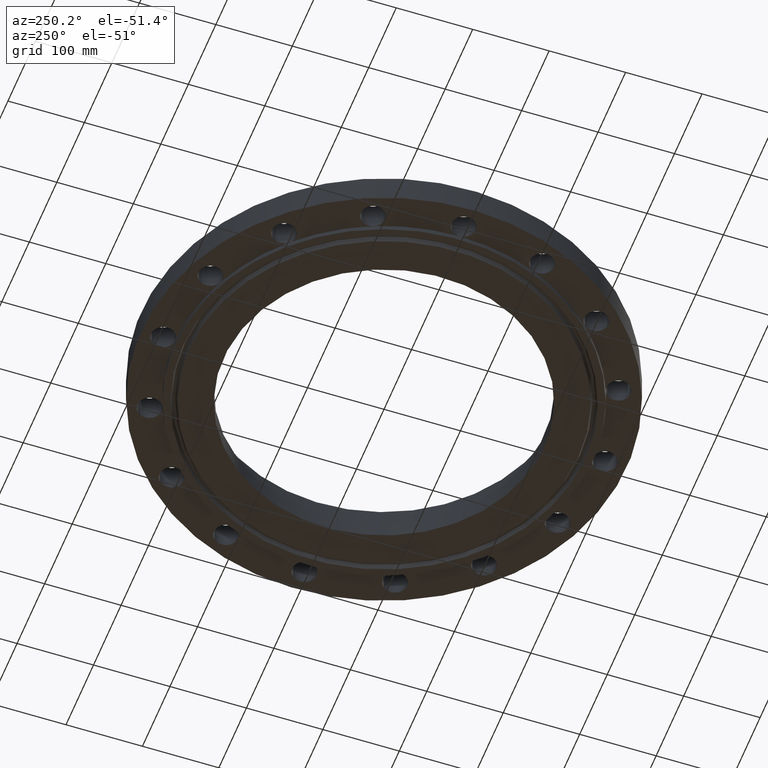
[diagram: clean part render]
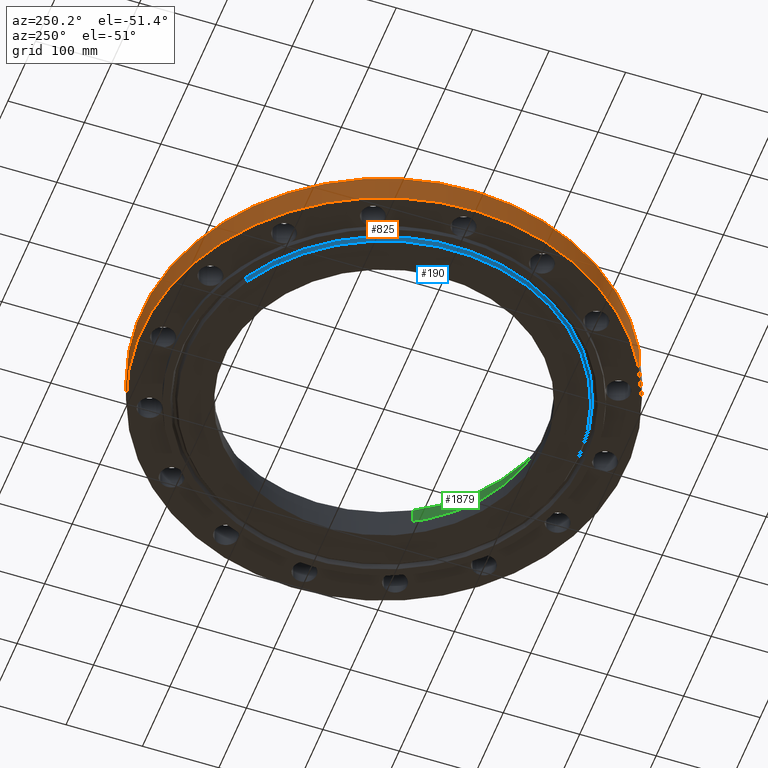
[diagram: same view with three faces highlighted in distinct colors, each labeled with its STEP entity id]
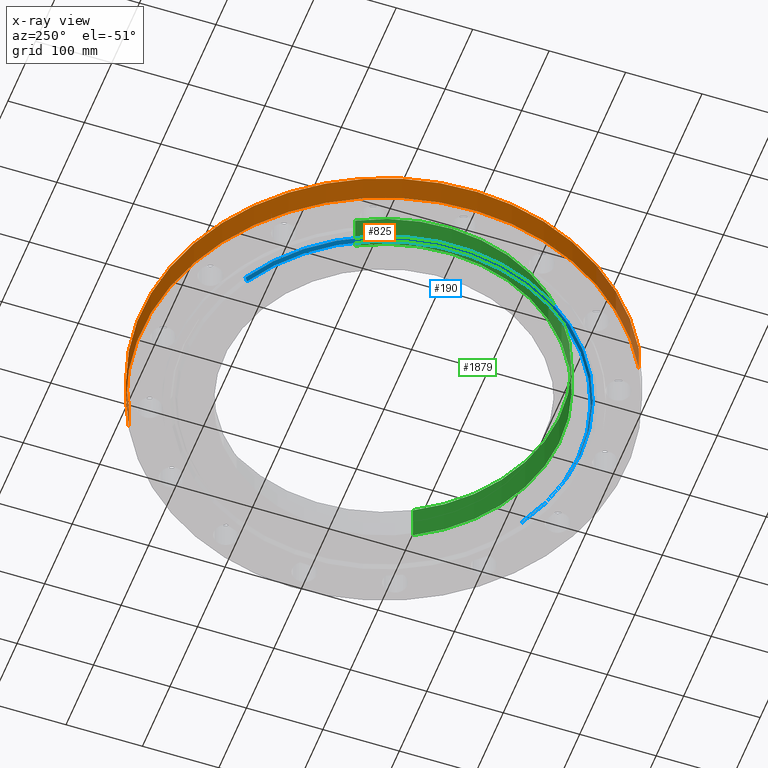
[diagram: x-ray of the same camera — body ghosted, the three highlighted faces saturated]
A machine part, auxiliary view with three faces highlighted in distinct colors.
The next image is the same camera in x-ray (body ghosted, the three faces saturated) — at least one of them is partly hidden behind the body in this view.
Their STEP definitions:

[orange] entity #825 — the highlighted cylindrical surface (partial cylindrical patch) has radius 317.5 mm, axis along (0, 0, -1).
#406=AXIS2_PLACEMENT_3D('Circle Axis2P3D',#404,#405,$) ;
#798=AXIS2_PLACEMENT_3D('Cylinder Axis2P3D',#795,#796,#797) ;
#809=AXIS2_PLACEMENT_3D('Circle Axis2P3D',#807,#808,$) ;
#404=CARTESIAN_POINT('Axis2P3D Location',(0.,0.,0.)) ;
#408=CARTESIAN_POINT('Vertex',(-5.99281923258,-10.9697820237,1.39870617276E-015)) ;
#410=CARTESIAN_POINT('Vertex',(5.99281923258,10.9697820237,1.39870617276E-015)) ;
#795=CARTESIAN_POINT('Axis2P3D Location',(0.,0.,1.185)) ;
#800=CARTESIAN_POINT('Line Origine',(-5.99281923258,-10.9697820237,0.750000000003)) ;
#804=CARTESIAN_POINT('Vertex',(-5.99281923258,-10.9697820237,1.50000000001)) ;
#807=CARTESIAN_POINT('Axis2P3D Location',(0.,0.,1.50000000001)) ;
#811=CARTESIAN_POINT('Vertex',(5.99281923258,10.9697820237,1.50000000001)) ;
#814=CARTESIAN_POINT('Line Origine',(5.99281923258,10.9697820237,0.750000000003)) ;
#405=DIRECTION('Axis2P3D Direction',(0.,0.,-0.0393700787402)) ;
#796=DIRECTION('Axis2P3D Direction',(0.,0.,-0.0393700787402)) ;
#797=DIRECTION('Axis2P3D XDirection',(0.0188750212049,0.0345504945626,0.)) ;
#801=DIRECTION('Vector Direction',(0.,0.,-0.0393700787402)) ;
#808=DIRECTION('Axis2P3D Direction',(0.,0.,-0.0393700787402)) ;
#815=DIRECTION('Vector Direction',(0.,0.,-0.0393700787402)) ;
#802=VECTOR('Line Direction',#801,0.0393700787402) ;
#816=VECTOR('Line Direction',#815,0.0393700787402) ;
#820=ORIENTED_EDGE('',*,*,#412,.F.) ;
#821=ORIENTED_EDGE('',*,*,#806,.T.) ;
#822=ORIENTED_EDGE('',*,*,#813,.T.) ;
#823=ORIENTED_EDGE('',*,*,#818,.F.) ;
#825=ADVANCED_FACE('PartBody',(#824),#799,.T.) ;
#407=CIRCLE('generated circle',#406,12.5000000001) ;
#810=CIRCLE('generated circle',#809,12.5000000001) ;
#799=CYLINDRICAL_SURFACE('generated cylinder',#798,12.5000000001) ;
#412=EDGE_CURVE('',#409,#411,#407,.T.) ;
#806=EDGE_CURVE('',#409,#805,#803,.F.) ;
#813=EDGE_CURVE('',#805,#812,#810,.T.) ;
#818=EDGE_CURVE('',#411,#812,#817,.F.) ;
#819=EDGE_LOOP('',(#820,#821,#822,#823)) ;
#824=FACE_OUTER_BOUND('',#819,.T.) ;
#803=LINE('Line',#800,#802) ;
#817=LINE('Line',#814,#816) ;
#409=VERTEX_POINT('',#408) ;
#411=VERTEX_POINT('',#410) ;
#805=VERTEX_POINT('',#804) ;
#812=VERTEX_POINT('',#811) ;

[blue] entity #190 — the highlighted conical surface has half-angle 23 deg.
#136=AXIS2_PLACEMENT_3D('Circle Axis2P3D',#134,#135,$) ;
#151=AXIS2_PLACEMENT_3D('Cone Axis2P3D',#148,#149,#150) ;
#181=AXIS2_PLACEMENT_3D('Circle Axis2P3D',#179,#180,$) ;
#129=CARTESIAN_POINT('Vertex',(-4.8017464101,8.78953784647,-0.250000000001)) ;
#131=CARTESIAN_POINT('Vertex',(4.8017464101,-8.78953784647,-0.250000000001)) ;
#134=CARTESIAN_POINT('Axis2P3D Location',(-1.1189649382E-015,0.,-0.250000000001)) ;
#148=CARTESIAN_POINT('Axis2P3D Location',(0.,0.,-0.310000000001)) ;
#153=CARTESIAN_POINT('Line Origine',(-4.82524709519,8.83255556197,-0.134519826118)) ;
#157=CARTESIAN_POINT('Vertex',(-4.84874778028,8.87557327748,-0.0190396522348)) ;
#164=CARTESIAN_POINT('Vertex',(4.84874778028,-8.87557327748,-0.0190396522348)) ;
#167=CARTESIAN_POINT('Line Origine',(4.82524709519,-8.83255556197,-0.134519826118)) ;
#179=CARTESIAN_POINT('Axis2P3D Location',(0.,0.,-0.0190396522348)) ;
#135=DIRECTION('Axis2P3D Direction',(0.,0.,-0.0393700787402)) ;
#149=DIRECTION('Axis2P3D Direction',(0.,0.,0.0393700787402)) ;
#150=DIRECTION('Axis2P3D XDirection',(-0.0188750212049,0.0345504945626,0.)) ;
#154=DIRECTION('Vector Direction',(-0.00737505833565,0.0134999537303,0.0362403485611)) ;
#168=DIRECTION('Vector Direction',(0.00737505833565,-0.0134999537303,0.0362403485611)) ;
#180=DIRECTION('Axis2P3D Direction',(0.,0.,0.0393700787402)) ;
#155=VECTOR('Line Direction',#154,0.0393700787402) ;
#169=VECTOR('Line Direction',#168,0.0393700787402) ;
#185=ORIENTED_EDGE('',*,*,#171,.F.) ;
#186=ORIENTED_EDGE('',*,*,#183,.F.) ;
#187=ORIENTED_EDGE('',*,*,#159,.T.) ;
#188=ORIENTED_EDGE('',*,*,#138,.F.) ;
#190=ADVANCED_FACE('PartBody',(#189),#152,.T.) ;
#137=CIRCLE('generated circle',#136,10.015625) ;
#182=CIRCLE('generated circle',#181,10.1136618512) ;
#152=CONICAL_SURFACE('Cone',#151,9.99015651107,0.401425727959) ;
#138=EDGE_CURVE('',#132,#130,#137,.T.) ;
#159=EDGE_CURVE('',#158,#130,#156,.F.) ;
#171=EDGE_CURVE('',#165,#132,#170,.F.) ;
#183=EDGE_CURVE('',#158,#165,#182,.T.) ;
#184=EDGE_LOOP('',(#185,#186,#187,#188)) ;
#189=FACE_OUTER_BOUND('',#184,.T.) ;
#156=LINE('Line',#153,#155) ;
#170=LINE('Line',#167,#169) ;
#130=VERTEX_POINT('',#129) ;
#132=VERTEX_POINT('',#131) ;
#158=VERTEX_POINT('',#157) ;
#165=VERTEX_POINT('',#164) ;

[green] entity #1879 — the highlighted cylindrical surface (partial cylindrical patch) has radius 230.886 mm, axis along (0, 0, -1).
#51=AXIS2_PLACEMENT_3D('Circle Axis2P3D',#49,#50,$) ;
#1814=AXIS2_PLACEMENT_3D('Circle Axis2P3D',#1812,#1813,$) ;
#1854=AXIS2_PLACEMENT_3D('Cylinder Axis2P3D',#1851,#1852,#1853) ;
#44=CARTESIAN_POINT('Vertex',(-7.97722548762,4.35797814593,0.680000000003)) ;
#46=CARTESIAN_POINT('Vertex',(7.97722548762,-4.35797814593,0.680000000003)) ;
#49=CARTESIAN_POINT('Axis2P3D Location',(1.04902962957E-016,-1.18890024684E-015,0.680000000003)) ;
#1807=CARTESIAN_POINT('Vertex',(-7.97722548762,4.35797814593,2.62000000001)) ;
#1809=CARTESIAN_POINT('Vertex',(7.97722548762,-4.35797814593,2.62000000001)) ;
#1812=CARTESIAN_POINT('Axis2P3D Location',(5.59482469102E-016,-4.47585975282E-015,2.62000000001)) ;
#1851=CARTESIAN_POINT('Axis2P3D Location',(1.04902962957E-016,-1.18890024684E-015,2.61606299214)) ;
#1856=CARTESIAN_POINT('Line Origine',(-7.97722548762,4.35797814593,1.65000000001)) ;
#1861=CARTESIAN_POINT('Line Origine',(7.97722548762,-4.35797814593,1.65000000001)) ;
#50=DIRECTION('Axis2P3D Direction',(0.,0.,-0.0393700787402)) ;
#1813=DIRECTION('Axis2P3D Direction',(0.,0.,-0.0393700787402)) ;
#1852=DIRECTION('Axis2P3D Direction',(0.,0.,-0.0393700787402)) ;
#1853=DIRECTION('Axis2P3D XDirection',(0.0345504945626,-0.0188750212049,0.)) ;
#1857=DIRECTION('Vector Direction',(0.,0.,-0.0393700787402)) ;
#1862=DIRECTION('Vector Direction',(0.,0.,-0.0393700787402)) ;
#1858=VECTOR('Line Direction',#1857,0.0393700787402) ;
#1863=VECTOR('Line Direction',#1862,0.0393700787402) ;
#1874=ORIENTED_EDGE('',*,*,#1816,.F.) ;
#1875=ORIENTED_EDGE('',*,*,#1865,.F.) ;
#1876=ORIENTED_EDGE('',*,*,#53,.T.) ;
#1877=ORIENTED_EDGE('',*,*,#1860,.T.) ;
#1879=ADVANCED_FACE('PartBody',(#1878),#1855,.F.) ;
#52=CIRCLE('generated circle',#51,9.09000000004) ;
#1815=CIRCLE('generated circle',#1814,9.09000000004) ;
#1855=CYLINDRICAL_SURFACE('generated cylinder',#1854,9.09000000004) ;
#53=EDGE_CURVE('',#47,#45,#52,.T.) ;
#1816=EDGE_CURVE('',#1810,#1808,#1815,.T.) ;
#1860=EDGE_CURVE('',#45,#1808,#1859,.F.) ;
#1865=EDGE_CURVE('',#47,#1810,#1864,.F.) ;
#1873=EDGE_LOOP('',(#1874,#1875,#1876,#1877)) ;
#1878=FACE_OUTER_BOUND('',#1873,.T.) ;
#1859=LINE('Line',#1856,#1858) ;
#1864=LINE('Line',#1861,#1863) ;
#45=VERTEX_POINT('',#44) ;
#47=VERTEX_POINT('',#46) ;
#1808=VERTEX_POINT('',#1807) ;
#1810=VERTEX_POINT('',#1809) ;